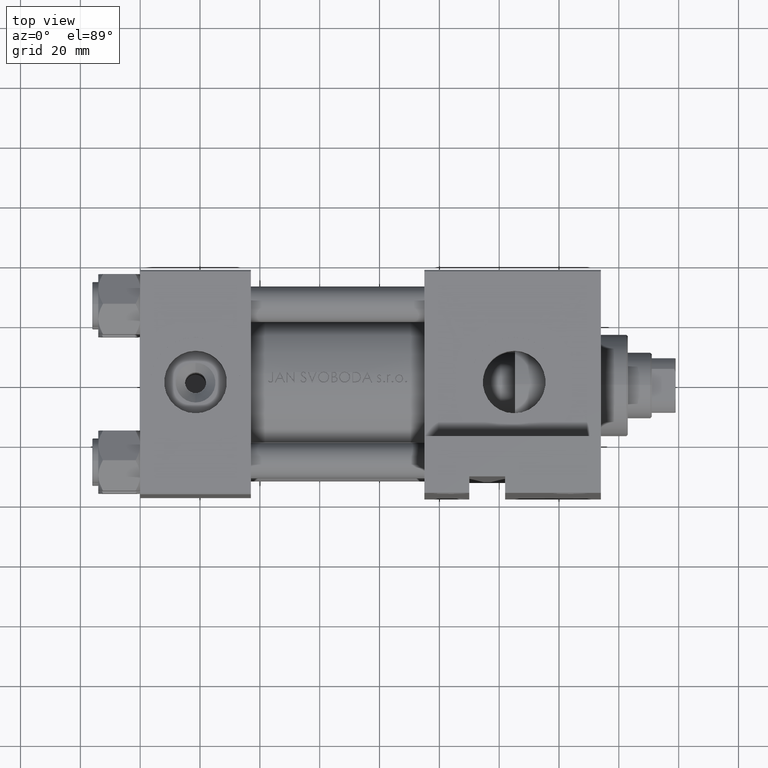
[diagram: clean part render]
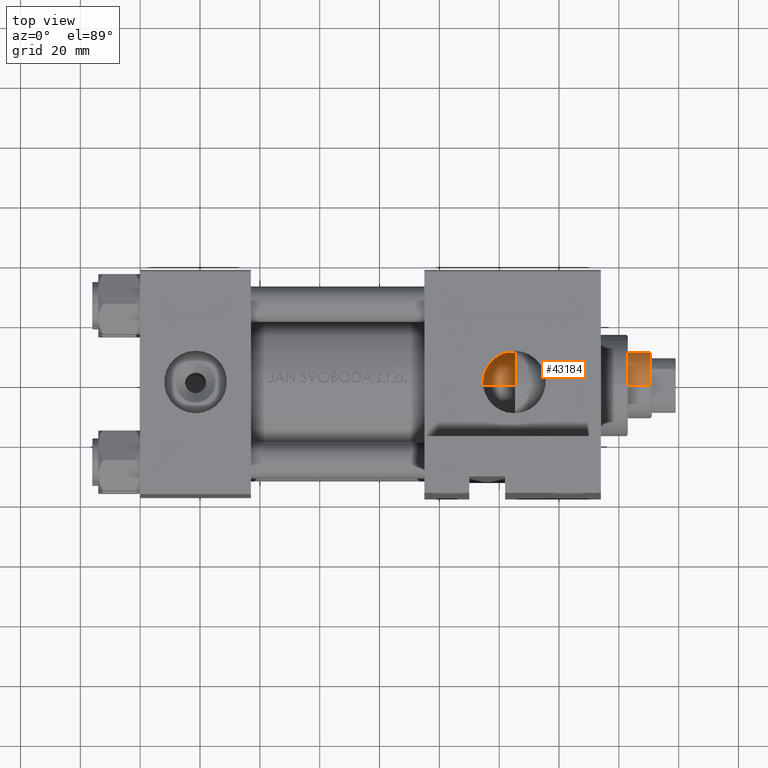
[diagram: same view with one face highlighted and labeled with its STEP entity id]
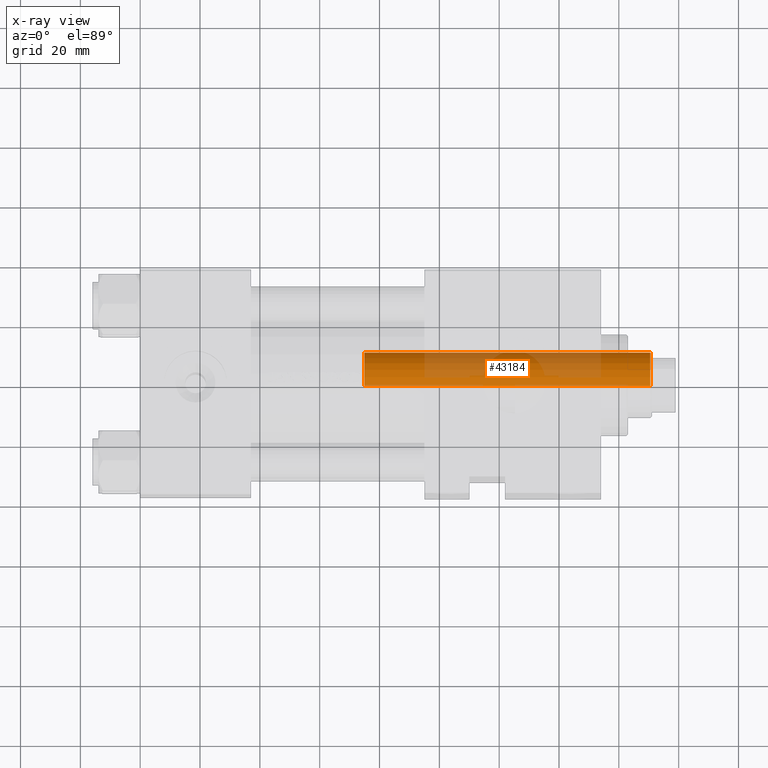
[diagram: x-ray of the same camera — body ghosted, the highlighted face saturated]
A machine part, top view. The second image highlights one B-rep face of the part: STEP entity #43184.
The next image is the same camera in x-ray: the body ghosted, the highlighted face saturated — about 36% of this face is hidden behind the body in this view.
In plain terms, the highlighted cylindrical surface (edge-blend (fillet) strip) has radius 11 mm, axis along (-1, 0, 0).
Its self-contained STEP definition (entity closure, byte-faithful):
#93 = CARTESIAN_POINT ( 'NONE',  ( -11.00000000000000000, 0.000000000000000000, 133.5000000000000000 ) ) ;
#359 = VERTEX_POINT ( 'NONE', #31140 ) ;
#1437 = CYLINDRICAL_SURFACE ( 'NONE', #17871, 11.00000000000000000 ) ;
#1925 = EDGE_CURVE ( 'NONE', #359, #21123, #42732, .T. ) ;
#2794 = ORIENTED_EDGE ( 'NONE', *, *, #31031, .F. ) ;
#5894 = DIRECTION ( 'NONE',  ( 0.000000000000000000, 0.000000000000000000, -1.000000000000000000 ) ) ;
#8297 = CARTESIAN_POINT ( 'NONE',  ( 11.00000000000000000, 1.347111479062088405E-15, 133.5000000000000000 ) ) ;
#9271 = VERTEX_POINT ( 'NONE', #93 ) ;
#14118 = EDGE_CURVE ( 'NONE', #19475, #9271, #32727, .T. ) ;
#14172 = ORIENTED_EDGE ( 'NONE', *, *, #36041, .T. ) ;
#16768 = CARTESIAN_POINT ( 'NONE',  ( 0.000000000000000000, 0.000000000000000000, 134.0000000000000000 ) ) ;
#17871 = AXIS2_PLACEMENT_3D ( 'NONE', #16768, #36088, #34038 ) ;
#19013 = CARTESIAN_POINT ( 'NONE',  ( 11.00000000000000000, 1.347111479062088405E-15, 134.0000000000000000 ) ) ;
#19475 = VERTEX_POINT ( 'NONE', #8297 ) ;
#20322 = ORIENTED_EDGE ( 'NONE', *, *, #1925, .T. ) ;
#20414 = VECTOR ( 'NONE', #25538, 1000.000000000000000 ) ;
#20790 = FACE_OUTER_BOUND ( 'NONE', #33581, .T. ) ;
#21123 = VERTEX_POINT ( 'NONE', #21945 ) ;
#21543 = CARTESIAN_POINT ( 'NONE',  ( -11.00000000000000000, 0.000000000000000000, 134.0000000000000000 ) ) ;
#21945 = CARTESIAN_POINT ( 'NONE',  ( 11.00000000000000000, 1.347111479062088405E-15, 38.00000000000000000 ) ) ;
#22522 = LINE ( 'NONE', #19013, #41053 ) ;
#22639 = ORIENTED_EDGE ( 'NONE', *, *, #14118, .T. ) ;
#25538 = DIRECTION ( 'NONE',  ( -0.000000000000000000, -0.000000000000000000, -1.000000000000000000 ) ) ;
#25943 = CARTESIAN_POINT ( 'NONE',  ( 0.000000000000000000, 0.000000000000000000, 133.5000000000000000 ) ) ;
#30062 = DIRECTION ( 'NONE',  ( 1.000000000000000000, 0.000000000000000000, 0.000000000000000000 ) ) ;
#31031 = EDGE_CURVE ( 'NONE', #19475, #21123, #22522, .T. ) ;
#31140 = CARTESIAN_POINT ( 'NONE',  ( -11.00000000000000000, 0.000000000000000000, 38.00000000000000000 ) ) ;
#32504 = DIRECTION ( 'NONE',  ( 1.000000000000000000, 0.000000000000000000, 0.000000000000000000 ) ) ;
#32727 = CIRCLE ( 'NONE', #38327, 11.00000000000000000 ) ;
#33581 = EDGE_LOOP ( 'NONE', ( #2794, #22639, #14172, #20322 ) ) ;
#33823 = CARTESIAN_POINT ( 'NONE',  ( 0.000000000000000000, 0.000000000000000000, 38.00000000000000000 ) ) ;
#34038 = DIRECTION ( 'NONE',  ( -1.000000000000000000, 0.000000000000000000, 0.000000000000000000 ) ) ;
#36041 = EDGE_CURVE ( 'NONE', #9271, #359, #40625, .T. ) ;
#36088 = DIRECTION ( 'NONE',  ( -0.000000000000000000, -0.000000000000000000, -1.000000000000000000 ) ) ;
#38327 = AXIS2_PLACEMENT_3D ( 'NONE', #25943, #5894, #32504 ) ;
#40625 = LINE ( 'NONE', #21543, #20414 ) ;
#41053 = VECTOR ( 'NONE', #49152, 1000.000000000000000 ) ;
#42732 = CIRCLE ( 'NONE', #45110, 11.00000000000000000 ) ;
#43184 = ADVANCED_FACE ( 'NONE', ( #20790 ), #1437, .T. ) ;
#45110 = AXIS2_PLACEMENT_3D ( 'NONE', #33823, #49162, #30062 ) ;
#49152 = DIRECTION ( 'NONE',  ( -0.000000000000000000, -0.000000000000000000, -1.000000000000000000 ) ) ;
#49162 = DIRECTION ( 'NONE',  ( 0.000000000000000000, 0.000000000000000000, 1.000000000000000000 ) ) ;